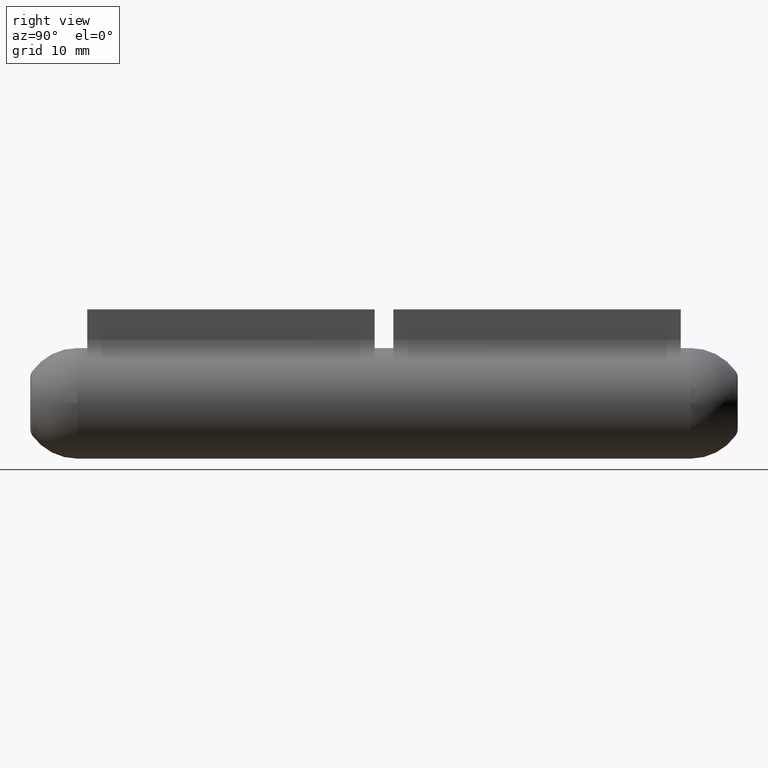
[diagram: clean part render]
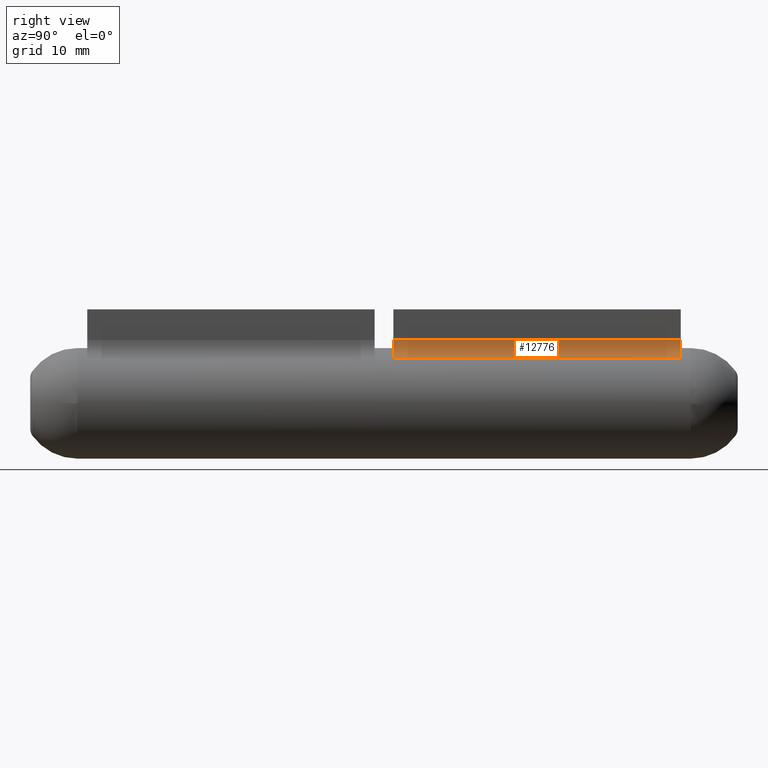
[diagram: same view with one face highlighted and labeled with its STEP entity id]
A machine part, right view. The second image highlights one B-rep face of the part: STEP entity #12776.
In plain terms, the highlighted cylindrical surface (edge-blend (fillet) strip) has radius 2 mm, axis along (-0, -1, -0).
Its self-contained STEP definition (entity closure, byte-faithful):
#580 = ORIENTED_EDGE ( 'NONE', *, *, #807, .F. ) ;
#807 = EDGE_CURVE ( 'NONE', #4966, #7247, #6538, .T. ) ;
#874 = CARTESIAN_POINT ( 'NONE',  ( 4.000000000000001776, -13.00000000000000000, 5.744562646538027728 ) ) ;
#1020 = DIRECTION ( 'NONE',  ( -0.000000000000000000, -1.000000000000000000, -0.000000000000000000 ) ) ;
#1385 = CARTESIAN_POINT ( 'NONE',  ( 2.857142857142858094, 13.00000000000000000, 4.103259033241448250 ) ) ;
#2495 = VECTOR ( 'NONE', #13313, 1000.000000000000000 ) ;
#2994 = CIRCLE ( 'NONE', #7222, 2.000000000000000000 ) ;
#3146 = CARTESIAN_POINT ( 'NONE',  ( 2.857142857142858094, -13.00000000000000000, 4.103259033241448250 ) ) ;
#3600 = AXIS2_PLACEMENT_3D ( 'NONE', #9864, #8729, #12043 ) ;
#4140 = LINE ( 'NONE', #7837, #12504 ) ;
#4712 = CARTESIAN_POINT ( 'NONE',  ( 2.000000000000001776, -13.00000000000000000, 5.744562646538027728 ) ) ;
#4966 = VERTEX_POINT ( 'NONE', #12285 ) ;
#5745 = FACE_OUTER_BOUND ( 'NONE', #9573, .T. ) ;
#5845 = ORIENTED_EDGE ( 'NONE', *, *, #9142, .F. ) ;
#6110 = CARTESIAN_POINT ( 'NONE',  ( 4.000000000000001776, 13.00000000000000000, 5.744562646538027728 ) ) ;
#6538 = LINE ( 'NONE', #1385, #2495 ) ;
#7089 = CARTESIAN_POINT ( 'NONE',  ( 2.000000000000001776, 13.00000000000000000, 5.744562646538027728 ) ) ;
#7206 = DIRECTION ( 'NONE',  ( -0.000000000000000000, -1.000000000000000000, -0.000000000000000000 ) ) ;
#7222 = AXIS2_PLACEMENT_3D ( 'NONE', #6110, #7206, #8306 ) ;
#7247 = VERTEX_POINT ( 'NONE', #3146 ) ;
#7837 = CARTESIAN_POINT ( 'NONE',  ( 2.000000000000001776, 13.00000000000000000, 5.744562646538027728 ) ) ;
#8306 = DIRECTION ( 'NONE',  ( 0.000000000000000000, 0.000000000000000000, 1.000000000000000000 ) ) ;
#8316 = VERTEX_POINT ( 'NONE', #7089 ) ;
#8729 = DIRECTION ( 'NONE',  ( -0.000000000000000000, -1.000000000000000000, -0.000000000000000000 ) ) ;
#9142 = EDGE_CURVE ( 'NONE', #8316, #4966, #2994, .T. ) ;
#9573 = EDGE_LOOP ( 'NONE', ( #10222, #580, #5845, #13086 ) ) ;
#9577 = DIRECTION ( 'NONE',  ( 0.000000000000000000, 0.000000000000000000, 1.000000000000000000 ) ) ;
#9864 = CARTESIAN_POINT ( 'NONE',  ( 4.000000000000001776, 13.00000000000000000, 5.744562646538027728 ) ) ;
#9933 = EDGE_CURVE ( 'NONE', #8316, #12830, #4140, .T. ) ;
#10222 = ORIENTED_EDGE ( 'NONE', *, *, #14080, .T. ) ;
#10349 = CYLINDRICAL_SURFACE ( 'NONE', #3600, 2.000000000000000000 ) ;
#12043 = DIRECTION ( 'NONE',  ( 0.000000000000000000, 0.000000000000000000, -1.000000000000000000 ) ) ;
#12073 = DIRECTION ( 'NONE',  ( -0.000000000000000000, -1.000000000000000000, -0.000000000000000000 ) ) ;
#12285 = CARTESIAN_POINT ( 'NONE',  ( 2.857142857142858094, 13.00000000000000000, 4.103259033241448250 ) ) ;
#12504 = VECTOR ( 'NONE', #12073, 1000.000000000000000 ) ;
#12559 = CIRCLE ( 'NONE', #13990, 2.000000000000000000 ) ;
#12776 = ADVANCED_FACE ( 'NONE', ( #5745 ), #10349, .F. ) ;
#12830 = VERTEX_POINT ( 'NONE', #4712 ) ;
#13086 = ORIENTED_EDGE ( 'NONE', *, *, #9933, .T. ) ;
#13313 = DIRECTION ( 'NONE',  ( -0.000000000000000000, -1.000000000000000000, -0.000000000000000000 ) ) ;
#13990 = AXIS2_PLACEMENT_3D ( 'NONE', #874, #1020, #9577 ) ;
#14080 = EDGE_CURVE ( 'NONE', #12830, #7247, #12559, .T. ) ;